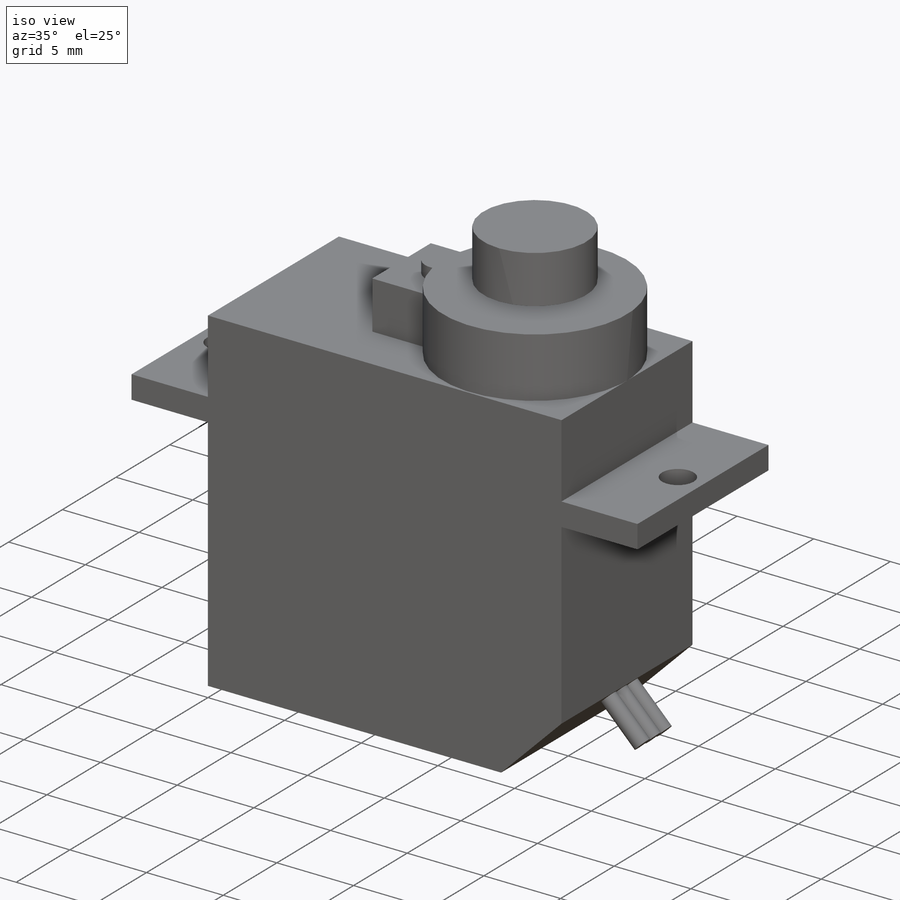
[diagram: iso view]
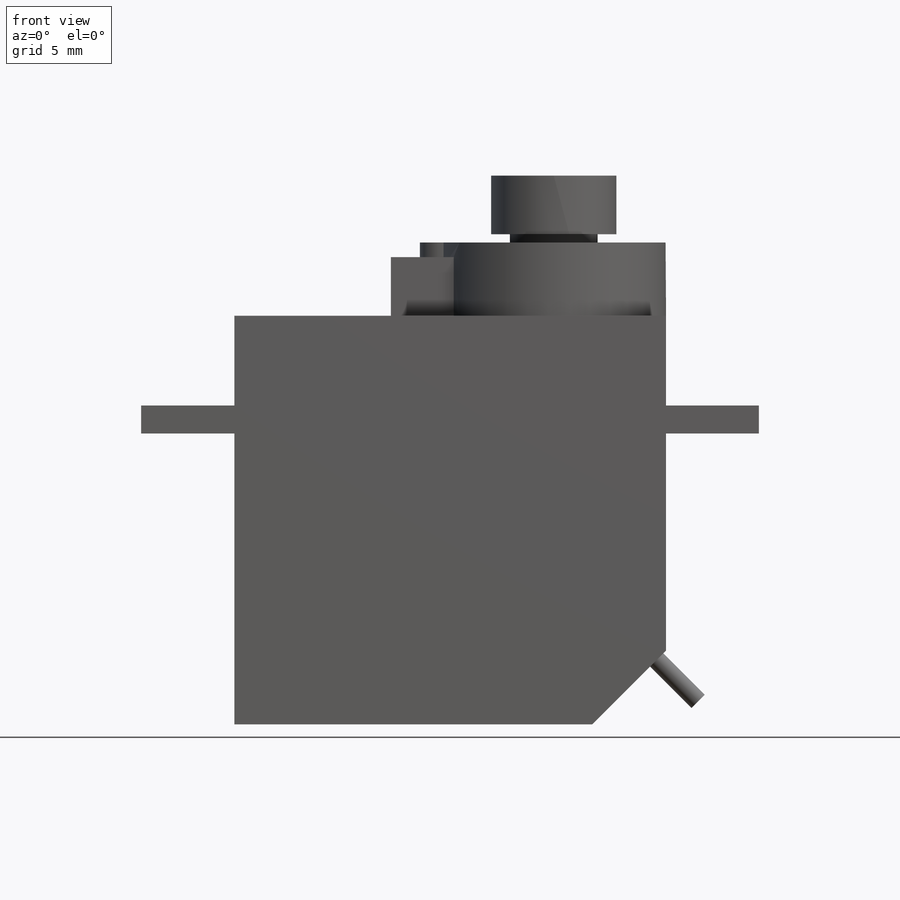
[diagram: front view]
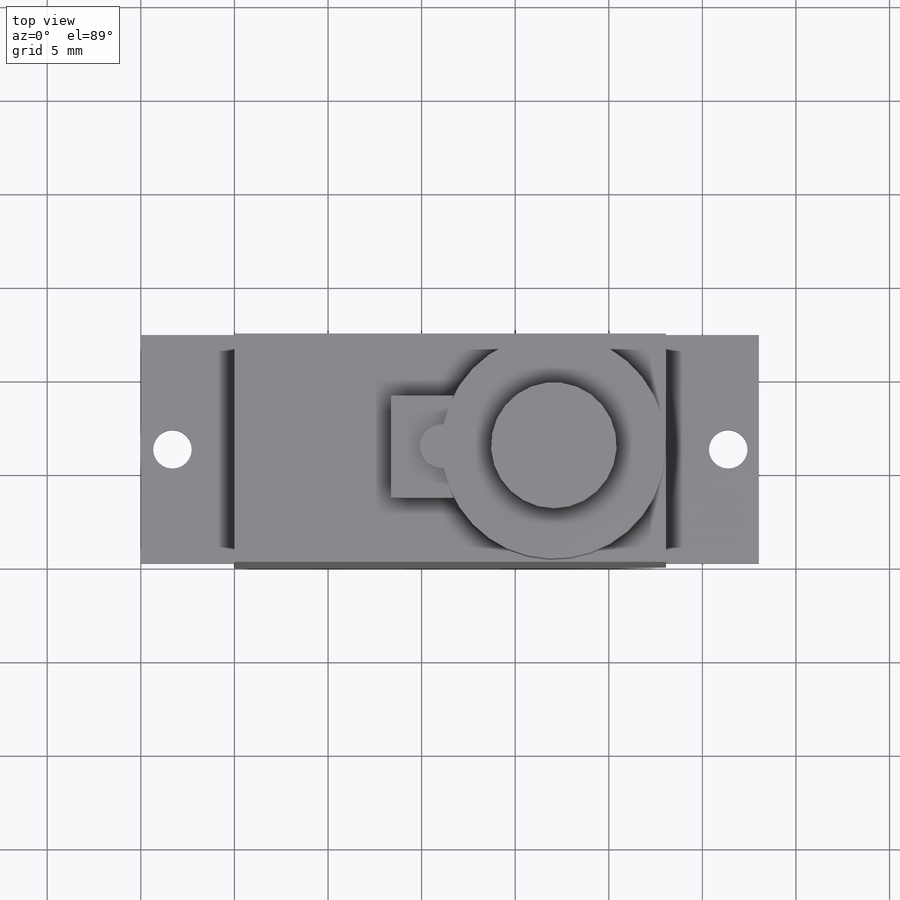
[diagram: top view]
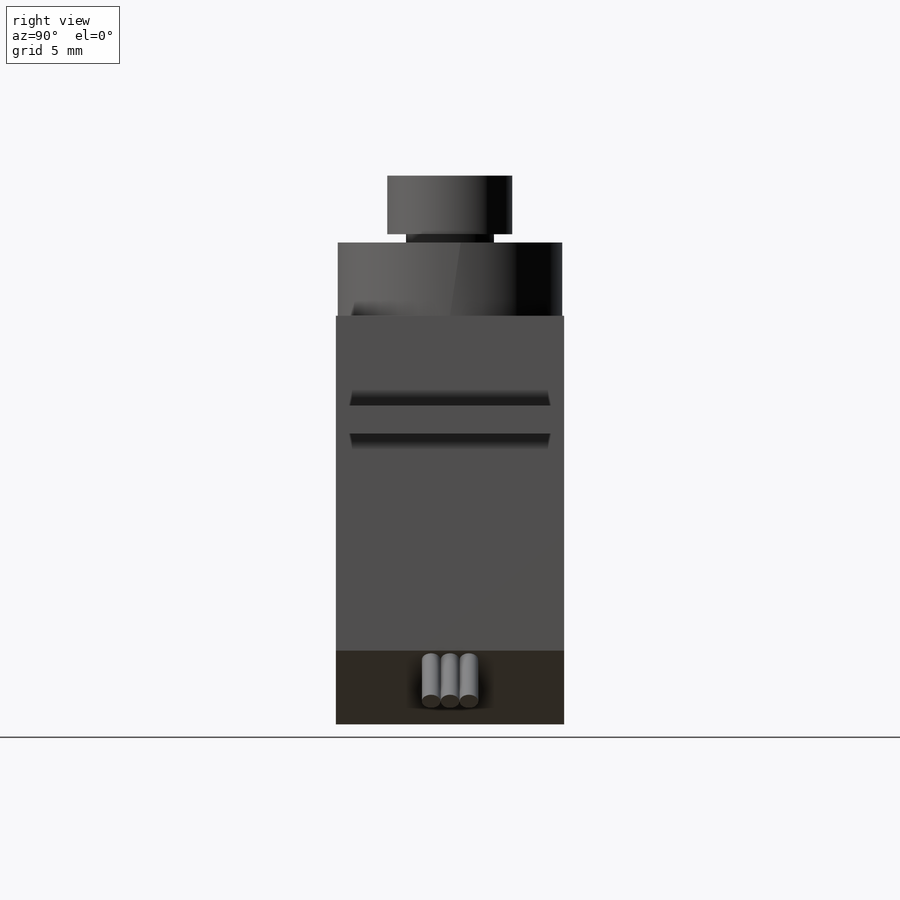
[diagram: right view]
SOLIDWORKS PART (.sldprt)
format: sldprt  version: not decoded by parser v0  size: 429,056 bytes
history: native  units: mm
features: sketch x11, extrude x8, cut_extrude x3, plane x2, material x1 + 1 further entry (+12 scaffold rows collapsed)
feature tree (38):
  scaffold x12  (default folders/planes/origin — collapsed)
  material  "Material <not specified>"
  "Annotations"  RD1=21.83mm RD2=23.06mm
  sketch  "Sketch1"  dims[c1.D1=15.48mm c1.D2=23.06mm c2.D1=3.94mm c2.D2=45.0deg]
  extrude  "Boss-Extrude1"  Depth=12.2mm
  sketch  "Sketch4"  dims[D1=33.0mm]
  extrude  "Boss-Extrude2"  Depth=12.2mm
  plane  "Plane1"  Offset=17mm
  sketch  "Sketch6"  dims[D1=~1.177685mm]
  cut_extrude  "Cut-Extrude1"  Depth=2.2mm
  sketch  "Sketch7"  dims[D1=~1.127722mm]
  cut_extrude  "Cut-Extrude2"  Depth=2.2mm
  sketch  "Sketch9"  dims[D1=~6.077702mm]
  extrude  "Boss-Extrude3"  Depth=8.74mm
  sketch  "Sketch11"  dims[D1=2.32mm]
  extrude  "Boss-Extrude4"  Depth=8.74mm
  sketch  "Sketch13"  dims[D1=5.4mm]
  extrude  "Boss-Extrude5"  Depth=7.96mm
  sketch  "Sketch14"  dims[D1=1.8565mm]
  extrude  "Boss-Extrude6"  Depth=11.51mm
  plane  "Plane2"  Offset=11.51mm
  sketch  "Sketch15"  dims[D1=~0.663922mm]
  cut_extrude  "Cut-Extrude3"  Depth=3.13mm
  sketch  "Sketch17"  dims[D1=~2.79716mm]
  extrude  "Boss-Extrude7"  Depth=3.13mm
  sketch  "Sketch18"  dims[D1=~0.507347mm]
  extrude  "Boss-Extrude8"  Depth=3.13mm
decode coverage: 22 of 22 modeling features carry decoded parameters; 1 rows unclassified (native names shown)
note: ~ marks probable driven/reference dimensions
note: suppression state not decoded; provenance and decode notes live in map.json
